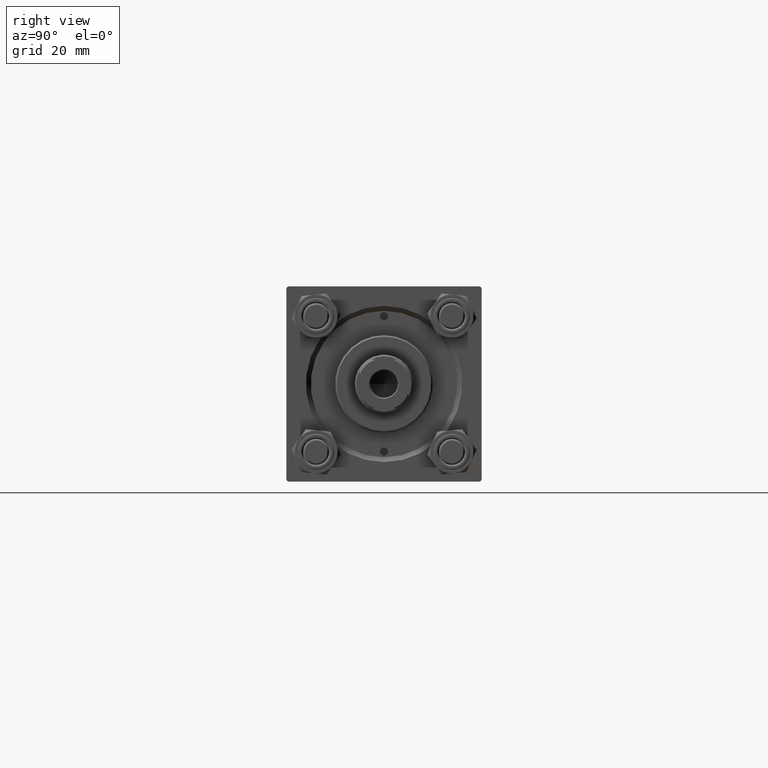
[diagram: clean part render]
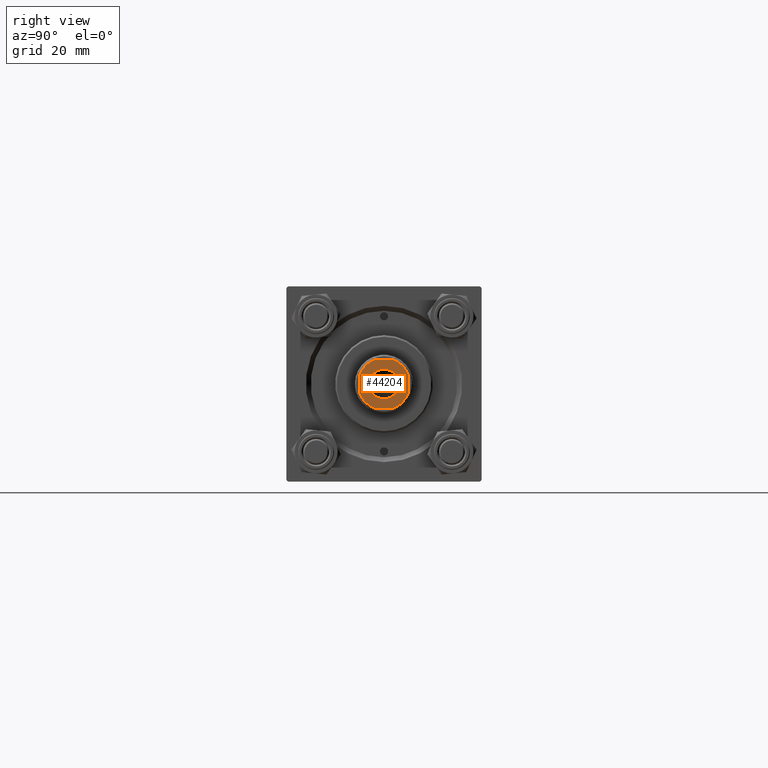
[diagram: same view with one face highlighted and labeled with its STEP entity id]
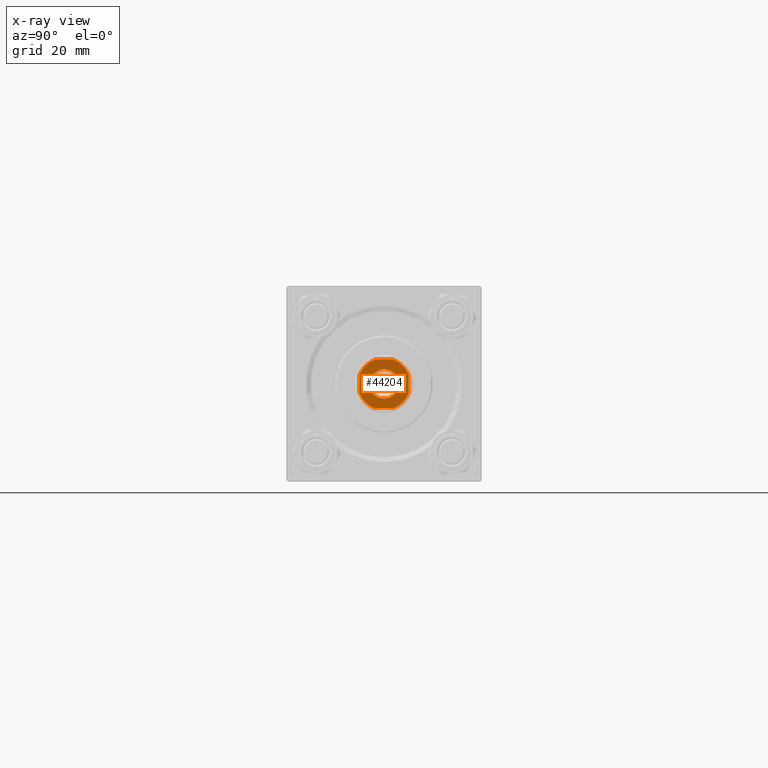
[diagram: x-ray of the same camera — body ghosted, the highlighted face saturated]
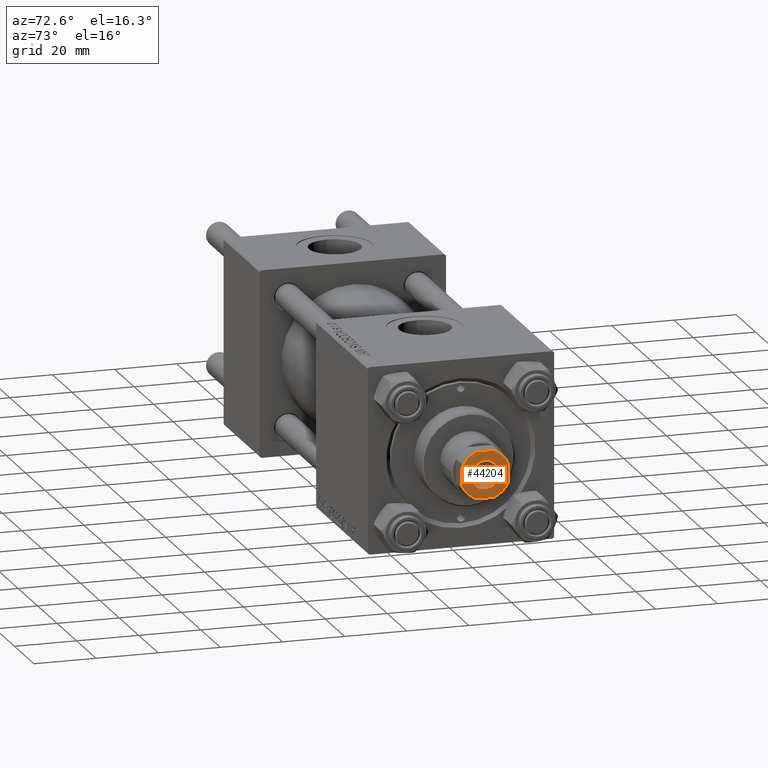
[diagram: same view with one face highlighted and labeled with its STEP entity id]
A machine part, right view. The second image highlights one B-rep face of the part: STEP entity #44204.
The next image is the same camera in x-ray: the body ghosted, the highlighted face saturated — about 0% of this face is hidden behind the body in this view.
A second angle (auxiliary view) of the same face is appended — the face is thin or edge-on in the first view.
In plain terms, the highlighted planar face has unit normal (1, 0, -0).
Its self-contained STEP definition (entity closure, byte-faithful):
#526 = LINE ( 'NONE', #24052, #44025 ) ;
#853 = VERTEX_POINT ( 'NONE', #27201 ) ;
#1484 = DIRECTION ( 'NONE',  ( -0.000000000000000000, 0.000000000000000000, 1.000000000000000000 ) ) ;
#1757 = VECTOR ( 'NONE', #26973, 1000.000000000000000 ) ;
#2039 = EDGE_CURVE ( 'NONE', #35259, #22288, #16943, .T. ) ;
#2227 = FACE_BOUND ( 'NONE', #9936, .T. ) ;
#3166 = CARTESIAN_POINT ( 'NONE',  ( -7.500000000000000000, 7.499999999999998224, 136.0000000000000000 ) ) ;
#3245 = LINE ( 'NONE', #38152, #42910 ) ;
#3410 = AXIS2_PLACEMENT_3D ( 'NONE', #47900, #13218, #40563 ) ;
#4289 = CARTESIAN_POINT ( 'NONE',  ( 0.000000000000000000, 0.000000000000000000, 136.0000000000000000 ) ) ;
#4790 = ORIENTED_EDGE ( 'NONE', *, *, #12755, .T. ) ;
#5889 = VERTEX_POINT ( 'NONE', #39414 ) ;
#6096 = AXIS2_PLACEMENT_3D ( 'NONE', #8375, #28605, #9367 ) ;
#6192 = VERTEX_POINT ( 'NONE', #43152 ) ;
#6886 = AXIS2_PLACEMENT_3D ( 'NONE', #4289, #31333, #39449 ) ;
#6890 = ORIENTED_EDGE ( 'NONE', *, *, #38211, .T. ) ;
#7343 = ORIENTED_EDGE ( 'NONE', *, *, #40313, .T. ) ;
#7470 = VECTOR ( 'NONE', #29491, 1000.000000000000000 ) ;
#8169 = CIRCLE ( 'NONE', #33234, 4.549999999999970512 ) ;
#8375 = CARTESIAN_POINT ( 'NONE',  ( 0.000000000000000000, 0.000000000000000000, 136.0000000000000000 ) ) ;
#9367 = DIRECTION ( 'NONE',  ( 1.000000000000000000, 0.000000000000000000, 0.000000000000000000 ) ) ;
#9936 = EDGE_LOOP ( 'NONE', ( #9987, #6890 ) ) ;
#9987 = ORIENTED_EDGE ( 'NONE', *, *, #18785, .T. ) ;
#9997 = EDGE_CURVE ( 'NONE', #6192, #35259, #3245, .T. ) ;
#11019 = CARTESIAN_POINT ( 'NONE',  ( 0.000000000000000000, 0.000000000000000000, 136.0000000000000000 ) ) ;
#11027 = CARTESIAN_POINT ( 'NONE',  ( -2.783882181414952139, -7.500000000000000000, 136.0000000000000000 ) ) ;
#11410 = ORIENTED_EDGE ( 'NONE', *, *, #20591, .T. ) ;
#11485 = CIRCLE ( 'NONE', #3410, 8.000000000000040856 ) ;
#11526 = CARTESIAN_POINT ( 'NONE',  ( -7.499999999999998224, -7.500000000000000000, 136.0000000000000000 ) ) ;
#11713 = CIRCLE ( 'NONE', #6886, 4.549999999999970512 ) ;
#12594 = CARTESIAN_POINT ( 'NONE',  ( 7.500000000000000888, -2.783882181415129331, 136.0000000000000000 ) ) ;
#12755 = EDGE_CURVE ( 'NONE', #47633, #5889, #37333, .T. ) ;
#13202 = DIRECTION ( 'NONE',  ( 1.000000000000000000, 0.000000000000000000, 0.000000000000000000 ) ) ;
#13218 = DIRECTION ( 'NONE',  ( -0.000000000000000000, 0.000000000000000000, 1.000000000000000000 ) ) ;
#13355 = DIRECTION ( 'NONE',  ( 1.000000000000000000, 0.000000000000000000, 0.000000000000000000 ) ) ;
#13549 = CARTESIAN_POINT ( 'NONE',  ( 2.783882181415132440, -7.500000000000000000, 136.0000000000000000 ) ) ;
#14045 = CARTESIAN_POINT ( 'NONE',  ( 0.000000000000000000, 0.000000000000000000, 136.0000000000000000 ) ) ;
#16943 = CIRCLE ( 'NONE', #42772, 7.999999999999979572 ) ;
#17703 = EDGE_CURVE ( 'NONE', #43353, #20322, #526, .T. ) ;
#17904 = CARTESIAN_POINT ( 'NONE',  ( 0.000000000000000000, 0.000000000000000000, 136.0000000000000000 ) ) ;
#18785 = EDGE_CURVE ( 'NONE', #26174, #853, #11713, .T. ) ;
#20322 = VERTEX_POINT ( 'NONE', #45097 ) ;
#20591 = EDGE_CURVE ( 'NONE', #25301, #43353, #35202, .T. ) ;
#21050 = CARTESIAN_POINT ( 'NONE',  ( 0.000000000000000000, 0.000000000000000000, 136.0000000000000000 ) ) ;
#21098 = CARTESIAN_POINT ( 'NONE',  ( 4.549999999999970512, 0.000000000000000000, 136.0000000000000000 ) ) ;
#22288 = VERTEX_POINT ( 'NONE', #11027 ) ;
#24052 = CARTESIAN_POINT ( 'NONE',  ( 7.500000000000000000, 7.500000000000000000, 136.0000000000000000 ) ) ;
#24123 = EDGE_LOOP ( 'NONE', ( #49499, #7343, #4790, #41051, #25163, #31904, #37260, #11410 ) ) ;
#25163 = ORIENTED_EDGE ( 'NONE', *, *, #9997, .T. ) ;
#25301 = VERTEX_POINT ( 'NONE', #13549 ) ;
#25456 = CARTESIAN_POINT ( 'NONE',  ( -7.499999999999997335, -2.783882181414957468, 136.0000000000000000 ) ) ;
#26174 = VERTEX_POINT ( 'NONE', #21098 ) ;
#26182 = DIRECTION ( 'NONE',  ( 1.000000000000000000, 0.000000000000000000, 0.000000000000000000 ) ) ;
#26629 = CIRCLE ( 'NONE', #47625, 7.999999999999981348 ) ;
#26973 = DIRECTION ( 'NONE',  ( 1.000000000000000000, 0.000000000000000000, 0.000000000000000000 ) ) ;
#27201 = CARTESIAN_POINT ( 'NONE',  ( -4.549999999999970512, 5.572142936120421828E-16, 136.0000000000000000 ) ) ;
#28605 = DIRECTION ( 'NONE',  ( -0.000000000000000000, 0.000000000000000000, 1.000000000000000000 ) ) ;
#28608 = CARTESIAN_POINT ( 'NONE',  ( 2.783882181415129331, 7.499999999999999112, 136.0000000000000000 ) ) ;
#29491 = DIRECTION ( 'NONE',  ( -1.000000000000000000, -1.156482317317871478E-16, -0.000000000000000000 ) ) ;
#31333 = DIRECTION ( 'NONE',  ( 0.000000000000000000, -0.000000000000000000, -1.000000000000000000 ) ) ;
#31890 = DIRECTION ( 'NONE',  ( -1.156482317317871478E-16, 1.000000000000000000, -0.000000000000000000 ) ) ;
#31904 = ORIENTED_EDGE ( 'NONE', *, *, #2039, .T. ) ;
#33234 = AXIS2_PLACEMENT_3D ( 'NONE', #11019, #38110, #41914 ) ;
#33615 = EDGE_CURVE ( 'NONE', #5889, #6192, #26629, .T. ) ;
#34269 = DIRECTION ( 'NONE',  ( -0.000000000000000000, 0.000000000000000000, 1.000000000000000000 ) ) ;
#35202 = CIRCLE ( 'NONE', #6096, 8.000000000000042633 ) ;
#35259 = VERTEX_POINT ( 'NONE', #25456 ) ;
#36653 = FACE_OUTER_BOUND ( 'NONE', #24123, .T. ) ;
#37260 = ORIENTED_EDGE ( 'NONE', *, *, #39512, .T. ) ;
#37333 = LINE ( 'NONE', #3166, #7470 ) ;
#38110 = DIRECTION ( 'NONE',  ( 0.000000000000000000, -0.000000000000000000, -1.000000000000000000 ) ) ;
#38150 = AXIS2_PLACEMENT_3D ( 'NONE', #17904, #1484, #13355 ) ;
#38152 = CARTESIAN_POINT ( 'NONE',  ( -7.500000000000000000, 7.499999999999998224, 136.0000000000000000 ) ) ;
#38211 = EDGE_CURVE ( 'NONE', #853, #26174, #8169, .T. ) ;
#39414 = CARTESIAN_POINT ( 'NONE',  ( -2.783882181414960577, 7.499999999999999112, 136.0000000000000000 ) ) ;
#39449 = DIRECTION ( 'NONE',  ( 1.000000000000000000, 0.000000000000000000, 0.000000000000000000 ) ) ;
#39512 = EDGE_CURVE ( 'NONE', #22288, #25301, #46207, .T. ) ;
#40313 = EDGE_CURVE ( 'NONE', #20322, #47633, #11485, .T. ) ;
#40563 = DIRECTION ( 'NONE',  ( 1.000000000000000000, 0.000000000000000000, 0.000000000000000000 ) ) ;
#41051 = ORIENTED_EDGE ( 'NONE', *, *, #33615, .T. ) ;
#41914 = DIRECTION ( 'NONE',  ( 1.000000000000000000, 0.000000000000000000, 0.000000000000000000 ) ) ;
#42772 = AXIS2_PLACEMENT_3D ( 'NONE', #21050, #43849, #13202 ) ;
#42910 = VECTOR ( 'NONE', #45993, 1000.000000000000000 ) ;
#43152 = CARTESIAN_POINT ( 'NONE',  ( -7.499999999999999112, 2.783882181414961021, 136.0000000000000000 ) ) ;
#43353 = VERTEX_POINT ( 'NONE', #12594 ) ;
#43849 = DIRECTION ( 'NONE',  ( -0.000000000000000000, 0.000000000000000000, 1.000000000000000000 ) ) ;
#44025 = VECTOR ( 'NONE', #31890, 1000.000000000000000 ) ;
#44204 = ADVANCED_FACE ( 'NONE', ( #2227, #36653 ), #48036, .T. ) ;
#45097 = CARTESIAN_POINT ( 'NONE',  ( 7.500000000000000888, 2.783882181415126222, 136.0000000000000000 ) ) ;
#45993 = DIRECTION ( 'NONE',  ( 1.156482317317871725E-16, -1.000000000000000000, 0.000000000000000000 ) ) ;
#46207 = LINE ( 'NONE', #11526, #1757 ) ;
#47625 = AXIS2_PLACEMENT_3D ( 'NONE', #14045, #34269, #26182 ) ;
#47633 = VERTEX_POINT ( 'NONE', #28608 ) ;
#47900 = CARTESIAN_POINT ( 'NONE',  ( 0.000000000000000000, 0.000000000000000000, 136.0000000000000000 ) ) ;
#48036 = PLANE ( 'NONE',  #38150 ) ;
#49499 = ORIENTED_EDGE ( 'NONE', *, *, #17703, .T. ) ;